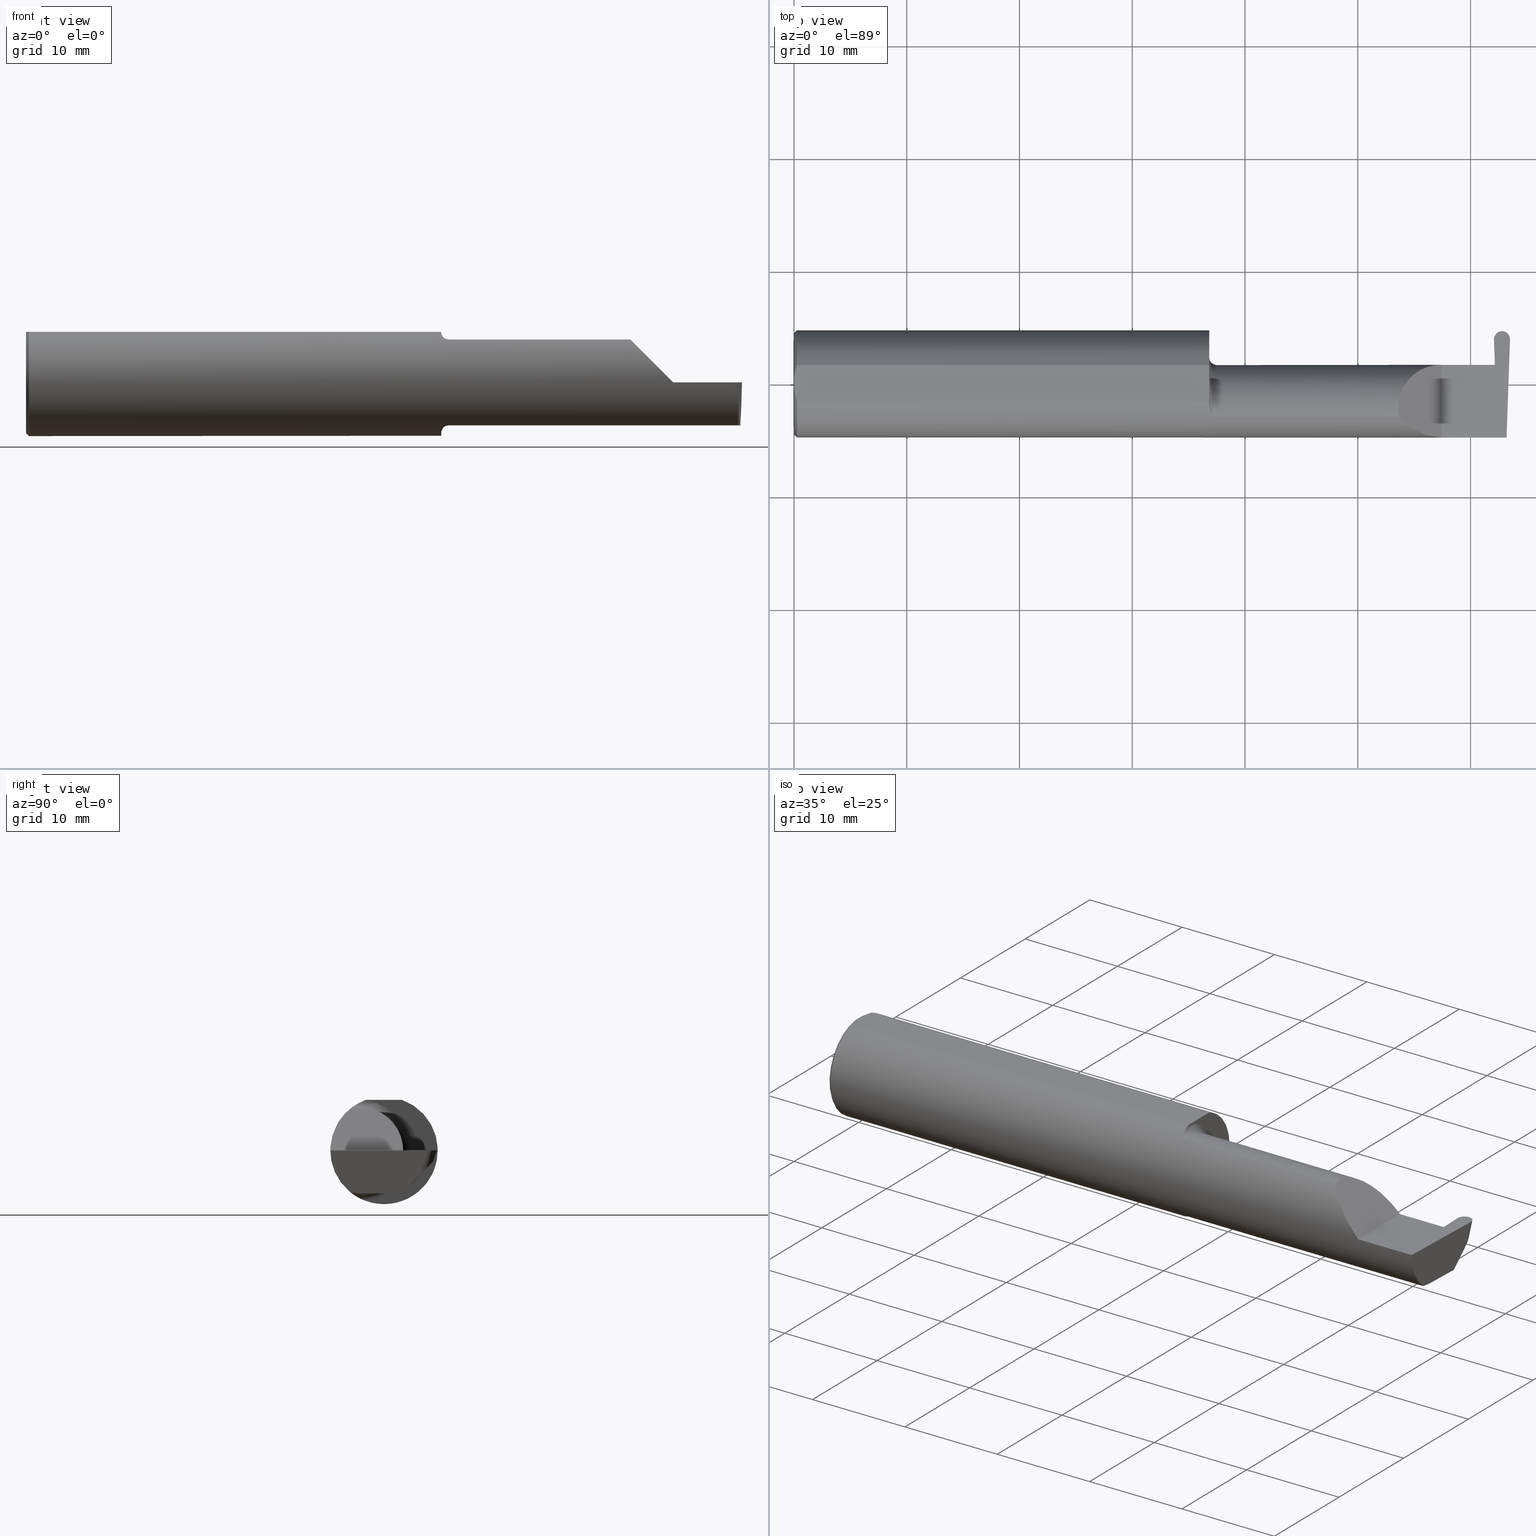
[diagram: canonical four-view strip — front | top / right | iso, engineering-drawing reading convention]
A machine part, canonical four-view strip (front | top / right | iso — engineering-drawing reading convention). The complete STEP part file that produces these views, byte-faithful:
ISO-10303-21;
HEADER;
FILE_DESCRIPTION (( 'STEP AP203' ),
    '1' );
FILE_NAME ('222128-GFR055-16.STEP',
    '2024-06-26T18:49:57',
    ( '' ),
    ( '' ),
    'SwSTEP 2.0',
    'SolidWorks 2024',
    '' );
FILE_SCHEMA (( 'CONFIG_CONTROL_DESIGN' ));
ENDSEC;

DATA;
#1 = CARTESIAN_POINT ( 'NONE',  ( 1.450000000000000178, -0.06851976604679066440, 0.1743704796142198643 ) ) ;
#2 = ORIENTED_EDGE ( 'NONE', *, *, #389, .T. ) ;
#3 = CALENDAR_DATE ( 2024, 26, 6 ) ;
#4 = DIRECTION ( 'NONE',  ( 0.000000000000000000, 0.000000000000000000, -1.000000000000000000 ) ) ;
#5 = PERSON_AND_ORGANIZATION_ROLE ( 'creator' ) ;
#6 = VERTEX_POINT ( 'NONE', #655 ) ;
#7 = AXIS2_PLACEMENT_3D ( 'NONE', #624, #193, #408 ) ;
#8 = CARTESIAN_POINT ( 'NONE',  ( 2.260000000000000231, -0.2500000000000000555, 2.939152317953647352E-17 ) ) ;
#9 = CARTESIAN_POINT ( 'NONE',  ( 1.450000000000000178, -0.06851976604679066440, -0.1743704796142198643 ) ) ;
#10 = CARTESIAN_POINT ( 'NONE',  ( 0.000000000000000000, -0.01880691362238934641, 0.1763499999999999235 ) ) ;
#11 = PERSON_AND_ORGANIZATION ( #506, #452 ) ;
#12 = CYLINDRICAL_SURFACE ( 'NONE', #168, 0.02800000000000000058 ) ;
#13 = EDGE_CURVE ( 'NONE', #455, #108, #382, .T. ) ;
#14 = EDGE_CURVE ( 'NONE', #566, #235, #277, .T. ) ;
#15 = LINE ( 'NONE', #562, #669 ) ;
#16 = CIRCLE ( 'NONE', #270, 0.1773499999999999521 ) ;
#17 = CARTESIAN_POINT ( 'NONE',  ( 1.465028532764138580, -0.1137241120808235861, -0.1488947809299403513 ) ) ;
#18 = LOCAL_TIME ( 11, 49, 57.00000000000000000, #339 ) ;
#19 = EDGE_CURVE ( 'NONE', #343, #255, #606, .T. ) ;
#20 = DIRECTION ( 'NONE',  ( 0.000000000000000000, 1.000000000000000000, 0.000000000000000000 ) ) ;
#21 = ORIENTED_EDGE ( 'NONE', *, *, #623, .F. ) ;
#22 = DIRECTION ( 'NONE',  ( 1.000000000000000000, -0.000000000000000000, -0.000000000000000000 ) ) ;
#23 = CARTESIAN_POINT ( 'NONE',  ( 0.000000000000000000, 0.000000000000000000, -0.1773499999999999521 ) ) ;
#24 =( BOUNDED_CURVE ( )  B_SPLINE_CURVE ( 3, ( #248, #689, #198, #531 ),
 .UNSPECIFIED., .F., .F. ) 
 B_SPLINE_CURVE_WITH_KNOTS ( ( 4, 4 ),
 ( 4.712388980384688786, 5.606916381293133966 ),
 .UNSPECIFIED. ) 
 CURVE ( )  GEOMETRIC_REPRESENTATION_ITEM ( )  RATIONAL_B_SPLINE_CURVE ( ( 1.000000000000000000, 0.9344226172588806500, 0.9344226172588806500, 1.000000000000000000 ) ) 
 REPRESENTATION_ITEM ( '' )  );
#25 = CARTESIAN_POINT ( 'NONE',  ( 1.474999999999999867, -0.1172600179964005812, 0.1461167706989303927 ) ) ;
#26 = ORIENTED_EDGE ( 'NONE', *, *, #635, .F. ) ;
#27 = CARTESIAN_POINT ( 'NONE',  ( 2.447024025498200750, 0.06664999999999991764, 0.000000000000000000 ) ) ;
#28 = VERTEX_POINT ( 'NONE', #490 ) ;
#29 = DIRECTION ( 'NONE',  ( -0.000000000000000000, 1.000000000000000000, -0.000000000000000000 ) ) ;
#30 = LOCAL_TIME ( 11, 49, 57.00000000000000000, #661 ) ;
#31 = CARTESIAN_POINT ( 'NONE',  ( 2.488968613720943246, 0.1846500000000000641, -2.084523217784549751E-18 ) ) ;
#32 = VERTEX_POINT ( 'NONE', #378 ) ;
#33 = DIRECTION ( 'NONE',  ( 0.000000000000000000, -0.3090169943749481729, -0.9510565162951533091 ) ) ;
#34 = CARTESIAN_POINT ( 'NONE',  ( 0.000000000000000000, 0.000000000000000000, 0.000000000000000000 ) ) ;
#35 = ORIENTED_EDGE ( 'NONE', *, *, #118, .T. ) ;
#36 = DIRECTION ( 'NONE',  ( 0.7071067811865511255, 0.000000000000000000, -0.7071067811865439090 ) ) ;
#37 = VERTEX_POINT ( 'NONE', #10 ) ;
#38 = CARTESIAN_POINT ( 'NONE',  ( 0.000000000000000000, 0.01880691362238934988, 0.1763499999999999235 ) ) ;
#39 = VECTOR ( 'NONE', #107, 39.37007874015748854 ) ;
#40 = DIRECTION ( 'NONE',  ( 0.000000000000000000, 1.000000000000000000, 0.000000000000000000 ) ) ;
#41 = EDGE_CURVE ( 'NONE', #511, #187, #72, .T. ) ;
#42 = ORIENTED_EDGE ( 'NONE', *, *, #19, .F. ) ;
#43 = DIRECTION ( 'NONE',  ( -1.000000000000000000, -5.153652266948881677E-17, -0.000000000000000000 ) ) ;
#44 = VERTEX_POINT ( 'NONE', #496 ) ;
#45 = ADVANCED_FACE ( 'NONE', ( #549 ), #383, .F. ) ;
#46 = PLANE ( 'NONE',  #55 ) ;
#47 = CARTESIAN_POINT ( 'NONE',  ( 2.449736488887833907, 0.06030305154315079852, -0.1500000000000000500 ) ) ;
#48 = ORIENTED_EDGE ( 'NONE', *, *, #523, .T. ) ;
#49 = DIRECTION ( 'NONE',  ( -1.000000000000000000, -5.153652266948881677E-17, -0.000000000000000000 ) ) ;
#50 = ADVANCED_FACE ( 'NONE', ( #224 ), #218, .T. ) ;
#51 = CARTESIAN_POINT ( 'NONE',  ( 0.000000000000000000, 0.000000000000000000, 0.000000000000000000 ) ) ;
#52 = VECTOR ( 'NONE', #465, 39.37007874015748854 ) ;
#53 = ORIENTED_EDGE ( 'NONE', *, *, #374, .T. ) ;
#54 = AXIS2_PLACEMENT_3D ( 'NONE', #603, #58, #4 ) ;
#55 = AXIS2_PLACEMENT_3D ( 'NONE', #434, #106, #109 ) ;
#56 = FACE_OUTER_BOUND ( 'NONE', #394, .T. ) ;
#57 = CARTESIAN_POINT ( 'NONE',  ( 2.500000000000000000, -0.2500000000000000555, 0.000000000000000000 ) ) ;
#58 = DIRECTION ( 'NONE',  ( 1.000000000000000000, 0.000000000000000000, 0.000000000000000000 ) ) ;
#59 = EDGE_LOOP ( 'NONE', ( #384, #92, #321, #480 ) ) ;
#60 = APPROVAL_PERSON_ORGANIZATION ( #563, #666, #165 ) ;
#61 = DATE_AND_TIME ( #68, #682 ) ;
#62 = DIRECTION ( 'NONE',  ( 0.01806679408117481400, 0.000000000000000000, -0.9998367821557817559 ) ) ;
#63 = DIRECTION ( 'NONE',  ( -0.03489949670249509889, -0.9993908270190959842, 0.000000000000000000 ) ) ;
#64 = DATE_TIME_ROLE ( 'classification_date' ) ;
#65 = CARTESIAN_POINT ( 'NONE',  ( 1.472174967710399462, -0.1172600179964005812, -0.1461167706989303927 ) ) ;
#66 = EDGE_CURVE ( 'NONE', #537, #297, #584, .T. ) ;
#67 = PLANE ( 'NONE',  #380 ) ;
#68 = CALENDAR_DATE ( 2024, 26, 6 ) ;
#69 = CARTESIAN_POINT ( 'NONE',  ( 1.458439486659307338, -0.1064616213911158682, -0.1542305641651500470 ) ) ;
#70 = ADVANCED_FACE ( 'NONE', ( #499 ), #665, .F. ) ;
#71 = VERTEX_POINT ( 'NONE', #27 ) ;
#72 = CIRCLE ( 'NONE', #54, 0.1873499999999999888 ) ;
#73 = CARTESIAN_POINT ( 'NONE',  ( 2.447263571767182899, 0.1948092623211197250, -0.01549378922202960043 ) ) ;
#74 = CIRCLE ( 'NONE', #388, 0.1873499999999999888 ) ;
#75 = VERTEX_POINT ( 'NONE', #409 ) ;
#76 = CARTESIAN_POINT ( 'NONE',  ( 2.472196486352602030, 0.1846500000000000363, 0.000000000000000000 ) ) ;
#77 = DIRECTION ( 'NONE',  ( 1.000000000000000000, -0.000000000000000000, -0.000000000000000000 ) ) ;
#78 = VERTEX_POINT ( 'NONE', #342 ) ;
#79 = EDGE_CURVE ( 'NONE', #343, #387, #85, .T. ) ;
#80 = CARTESIAN_POINT ( 'NONE',  ( 2.496474746315712867, 0.1068850723125632091, -0.1034179792305871259 ) ) ;
#81 = LINE ( 'NONE', #451, #52 ) ;
#82 = APPLICATION_CONTEXT ( 'configuration controlled 3d designs of mechanical parts and assemblies' ) ;
#83 = ORIENTED_EDGE ( 'NONE', *, *, #282, .T. ) ;
#84 = DIRECTION ( 'NONE',  ( -0.0003154085283454281579, 0.9999999502587288980, 0.000000000000000000 ) ) ;
#85 = CIRCLE ( 'NONE', #166, 0.1873499999999999888 ) ;
#86 =( BOUNDED_CURVE ( )  B_SPLINE_CURVE ( 3, ( #308, #594, #530, #323 ),
 .UNSPECIFIED., .F., .F. ) 
 B_SPLINE_CURVE_WITH_KNOTS ( ( 4, 4 ),
 ( 1.570796326794885678, 1.601113425804750801 ),
 .UNSPECIFIED. ) 
 CURVE ( )  GEOMETRIC_REPRESENTATION_ITEM ( )  RATIONAL_B_SPLINE_CURVE ( ( 1.000000000000000000, 0.9999234075922796006, 0.9999234075922796006, 1.000000000000000000 ) ) 
 REPRESENTATION_ITEM ( '' )  );
#87 = AXIS2_PLACEMENT_3D ( 'NONE', #425, #370, #597 ) ;
#88 = LINE ( 'NONE', #159, #39 ) ;
#89 = ORIENTED_EDGE ( 'NONE', *, *, #245, .T. ) ;
#90 = PLANE ( 'NONE',  #625 ) ;
#91 = CARTESIAN_POINT ( 'NONE',  ( 1.959450000000000136, -0.1172600179964006506, 0.1461167706989303650 ) ) ;
#92 = ORIENTED_EDGE ( 'NONE', *, *, #374, .F. ) ;
#93 = CARTESIAN_POINT ( 'NONE',  ( 2.443949607349645614, 0.1545085540790380740, 0.0003624150208497781676 ) ) ;
#94 = ADVANCED_FACE ( 'NONE', ( #674 ), #227, .F. ) ;
#95 = LINE ( 'NONE', #368, #533 ) ;
#96 =( BOUNDED_CURVE ( )  B_SPLINE_CURVE ( 3, ( #703, #152, #653, #478 ),
 .UNSPECIFIED., .F., .F. ) 
 B_SPLINE_CURVE_WITH_KNOTS ( ( 4, 4 ),
 ( 0.8789888184544275562, 1.107026853503871644 ),
 .UNSPECIFIED. ) 
 CURVE ( )  GEOMETRIC_REPRESENTATION_ITEM ( )  RATIONAL_B_SPLINE_CURVE ( ( 1.000000000000000000, 0.9956712472009929815, 0.9956712472009929815, 1.000000000000000000 ) ) 
 REPRESENTATION_ITEM ( '' )  );
#97 = ORIENTED_EDGE ( 'NONE', *, *, #548, .T. ) ;
#98 =( NAMED_UNIT ( * ) SI_UNIT ( $, .STERADIAN. ) SOLID_ANGLE_UNIT ( ) );
#99 = CYLINDRICAL_SURFACE ( 'NONE', #461, 0.1499999999999999944 ) ;
#100 = VECTOR ( 'NONE', #312, 39.37007874015748854 ) ;
#101 = ORIENTED_EDGE ( 'NONE', *, *, #175, .F. ) ;
#102 = CARTESIAN_POINT ( 'NONE',  ( 0.01000000000000013205, 0.000000000000000000, 0.000000000000000000 ) ) ;
#103 = CARTESIAN_POINT ( 'NONE',  ( 0.01000000000000013205, -0.06325108694718235836, 0.1763499999999999235 ) ) ;
#104 = ORIENTED_EDGE ( 'NONE', *, *, #265, .T. ) ;
#105 = EDGE_CURVE ( 'NONE', #37, #552, #15, .T. ) ;
#106 = DIRECTION ( 'NONE',  ( 0.000000000000000000, 0.000000000000000000, 1.000000000000000000 ) ) ;
#107 = DIRECTION ( 'NONE',  ( -0.01806954526206910883, 0.01744955702544858864, 0.9996844524616943506 ) ) ;
#108 = VERTEX_POINT ( 'NONE', #237 ) ;
#109 = DIRECTION ( 'NONE',  ( 1.000000000000000000, 0.000000000000000000, -0.000000000000000000 ) ) ;
#110 = ORIENTED_EDGE ( 'NONE', *, *, #13, .T. ) ;
#111 = PERSON_AND_ORGANIZATION_ROLE ( 'design_supplier' ) ;
#112 = EDGE_CURVE ( 'NONE', #75, #638, #333, .T. ) ;
#113 = DIRECTION ( 'NONE',  ( -5.153652266948881677E-17, 1.000000000000000000, 0.000000000000000000 ) ) ;
#114 = CALENDAR_DATE ( 2024, 26, 6 ) ;
#115 = DIRECTION ( 'NONE',  ( -1.224646799147353947E-16, 0.000000000000000000, -1.000000000000000000 ) ) ;
#116 = DATE_AND_TIME ( #331, #18 ) ;
#117 = CARTESIAN_POINT ( 'NONE',  ( 1.474999999999999867, -0.1172600179964005812, -0.1461167706989303650 ) ) ;
#118 = EDGE_CURVE ( 'NONE', #6, #28, #81, .T. ) ;
#119 = DATE_AND_TIME ( #3, #30 ) ;
#120 = LINE ( 'NONE', #560, #262 ) ;
#121 = ORIENTED_EDGE ( 'NONE', *, *, #600, .T. ) ;
#122 = LINE ( 'NONE', #287, #509 ) ;
#123 = CARTESIAN_POINT ( 'NONE',  ( 0.01000000000000013205, 0.000000000000000000, -0.1873499999999999888 ) ) ;
#124 = ORIENTED_EDGE ( 'NONE', *, *, #19, .T. ) ;
#125 = CARTESIAN_POINT ( 'NONE',  ( 1.450358271039144054, -0.07873626113568082951, -0.1700887912276896341 ) ) ;
#126 = DIRECTION ( 'NONE',  ( 0.000000000000000000, -0.9510565162951534202, 0.3090169943749479509 ) ) ;
#127 = CARTESIAN_POINT ( 'NONE',  ( 2.447024025498200750, 0.06664999999999991764, 0.000000000000000000 ) ) ;
#128 = ORIENTED_EDGE ( 'NONE', *, *, #112, .F. ) ;
#129 = VECTOR ( 'NONE', #489, 39.37007874015748143 ) ;
#130 = CARTESIAN_POINT ( 'NONE',  ( 1.451829077486400443, -0.08839624499054646312, 0.1652742498708037744 ) ) ;
#131 = CARTESIAN_POINT ( 'NONE',  ( 2.470340804352568753, 0.1370935646770005678, -0.05575375471034092062 ) ) ;
#132 = ORIENTED_EDGE ( 'NONE', *, *, #14, .F. ) ;
#133 = LINE ( 'NONE', #680, #273 ) ;
#134 =( BOUNDED_CURVE ( )  B_SPLINE_CURVE ( 3, ( #173, #386, #598, #602 ),
 .UNSPECIFIED., .F., .F. ) 
 B_SPLINE_CURVE_WITH_KNOTS ( ( 4, 4 ),
 ( 6.199081184676152212, 7.797674339294876411 ),
 .UNSPECIFIED. ) 
 CURVE ( )  GEOMETRIC_REPRESENTATION_ITEM ( )  RATIONAL_B_SPLINE_CURVE ( ( 1.000000000000000000, 0.7981407609938082626, 0.7981407609938082626, 1.000000000000000000 ) ) 
 REPRESENTATION_ITEM ( '' )  );
#135 = CARTESIAN_POINT ( 'NONE',  ( 2.446346361333295416, 0.1274799371216592259, -0.08282311442149084546 ) ) ;
#136 = ORIENTED_EDGE ( 'NONE', *, *, #630, .T. ) ;
#137 = LINE ( 'NONE', #357, #402 ) ;
#138 = CARTESIAN_POINT ( 'NONE',  ( 2.447024025498200750, 0.06664999999999991764, 0.000000000000000000 ) ) ;
#139 = VERTEX_POINT ( 'NONE', #571 ) ;
#140 = ADVANCED_FACE ( 'NONE', ( #671 ), #67, .F. ) ;
#141 = EDGE_CURVE ( 'NONE', #28, #566, #164, .T. ) ;
#142 = FACE_OUTER_BOUND ( 'NONE', #180, .T. ) ;
#143 = AXIS2_PLACEMENT_3D ( 'NONE', #556, #616, #673 ) ;
#144 = LOCAL_TIME ( 11, 49, 57.00000000000000000, #609 ) ;
#145 = LINE ( 'NONE', #636, #448 ) ;
#146 = ORIENTED_EDGE ( 'NONE', *, *, #433, .T. ) ;
#147 = EDGE_CURVE ( 'NONE', #235, #588, #240, .T. ) ;
#148 = B_SPLINE_CURVE_WITH_KNOTS ( 'NONE', 3,
 ( #103, #372, #301, #590 ),
 .UNSPECIFIED., .F., .F.,
 ( 4, 4 ),
 ( 0.009771445421851331775, 0.01092787937989104369 ),
 .UNSPECIFIED. ) ;
#149 = DIRECTION ( 'NONE',  ( 1.000000000000000000, 0.000000000000000000, 0.000000000000000000 ) ) ;
#150 = CARTESIAN_POINT ( 'NONE',  ( 2.447118648061411772, 0.06655862405286416816, -0.005234924505382331644 ) ) ;
#151 = ORIENTED_EDGE ( 'NONE', *, *, #41, .F. ) ;
#152 = CARTESIAN_POINT ( 'NONE',  ( 2.488245243745037527, -0.1061291577212408604, -0.1486999626928446339 ) ) ;
#153 = DIRECTION ( 'NONE',  ( 0.000000000000000000, 0.000000000000000000, -1.000000000000000000 ) ) ;
#154 = ORIENTED_EDGE ( 'NONE', *, *, #364, .F. ) ;
#155 = B_SPLINE_CURVE_WITH_KNOTS ( 'NONE', 3,
 ( #38, #253, #647, #700 ),
 .UNSPECIFIED., .F., .F.,
 ( 4, 4 ),
 ( 0.01188664626022242071, 0.01304646959483746725 ),
 .UNSPECIFIED. ) ;
#156 =( CONVERSION_BASED_UNIT ( 'INCH', #161 ) LENGTH_UNIT ( ) NAMED_UNIT ( #413 ) );
#157 = CARTESIAN_POINT ( 'NONE',  ( 2.488006099050898090, -0.1873499999999999888, 0.000000000000000000 ) ) ;
#158 = ORIENTED_EDGE ( 'NONE', *, *, #147, .F. ) ;
#159 = CARTESIAN_POINT ( 'NONE',  ( 2.447024025498200750, 0.06664999999999991764, -9.645561665750333182E-21 ) ) ;
#160 = ORIENTED_EDGE ( 'NONE', *, *, #195, .T. ) ;
#161 = LENGTH_MEASURE_WITH_UNIT ( LENGTH_MEASURE( 0.02539999999999999897 ), #481 );
#162 = CARTESIAN_POINT ( 'NONE',  ( 0.000000000000000000, 0.000000000000000000, 0.000000000000000000 ) ) ;
#163 = CARTESIAN_POINT ( 'NONE',  ( 2.470340804352568309, 0.1637231471332648569, -0.06440623055283946352 ) ) ;
#164 =( BOUNDED_CURVE ( )  B_SPLINE_CURVE ( 3, ( #507, #354, #31, #392 ),
 .UNSPECIFIED., .F., .T. ) 
 B_SPLINE_CURVE_WITH_KNOTS ( ( 4, 4 ),
 ( 1.627103621474501827, 3.225696776093226248 ),
 .UNSPECIFIED. ) 
 CURVE ( )  GEOMETRIC_REPRESENTATION_ITEM ( )  RATIONAL_B_SPLINE_CURVE ( ( 1.000000000000000000, 0.7981407609938081515, 0.7981407609938081515, 1.000000000000000000 ) ) 
 REPRESENTATION_ITEM ( '' )  );
#165 = APPROVAL_ROLE ( '' ) ;
#166 = AXIS2_PLACEMENT_3D ( 'NONE', #576, #686, #20 ) ;
#167 = ORIENTED_EDGE ( 'NONE', *, *, #169, .T. ) ;
#168 = AXIS2_PLACEMENT_3D ( 'NONE', #231, #463, #126 ) ;
#169 = EDGE_CURVE ( 'NONE', #387, #352, #681, .T. ) ;
#170 = PERSON_AND_ORGANIZATION ( #506, #452 ) ;
#171 = CARTESIAN_POINT ( 'NONE',  ( 2.449754845031671291, 0.002105059811798285982, -0.1500000000000000222 ) ) ;
#172 = ORIENTED_EDGE ( 'NONE', *, *, #551, .F. ) ;
#173 = CARTESIAN_POINT ( 'NONE',  ( 2.471703513647399486, 0.1846500000000000363, 0.000000000000000000 ) ) ;
#174 = DIRECTION ( 'NONE',  ( -0.02739170151060046909, -0.3089010440752013587, -0.9506996579664918068 ) ) ;
#175 = EDGE_CURVE ( 'NONE', #608, #204, #677, .T. ) ;
#176 = AXIS2_PLACEMENT_3D ( 'NONE', #162, #668, #223 ) ;
#177 = CALENDAR_DATE ( 2024, 26, 6 ) ;
#178 = FACE_OUTER_BOUND ( 'NONE', #59, .T. ) ;
#179 = DIRECTION ( 'NONE',  ( 0.000000000000000000, -0.7071067811865515695, 0.7071067811865434649 ) ) ;
#180 = EDGE_LOOP ( 'NONE', ( #403, #525, #574 ) ) ;
#181 = CARTESIAN_POINT ( 'NONE',  ( 1.456304331342287872, -0.1022198306720690925, -0.1570962426853818594 ) ) ;
#182 = CC_DESIGN_PERSON_AND_ORGANIZATION_ASSIGNMENT ( #170, #443, ( #493 ) ) ;
#183 = CARTESIAN_POINT ( 'NONE',  ( 2.155331797197862720, 0.06664999999999998703, 0.1046682028021363453 ) ) ;
#184 = ORIENTED_EDGE ( 'NONE', *, *, #475, .T. ) ;
#185 = FACE_OUTER_BOUND ( 'NONE', #651, .T. ) ;
#186 = DIRECTION ( 'NONE',  ( -1.000000000000000000, -5.153652266948881677E-17, -0.000000000000000000 ) ) ;
#187 = VERTEX_POINT ( 'NONE', #123 ) ;
#188 = VECTOR ( 'NONE', #514, 39.37007874015748143 ) ;
#189 = CIRCLE ( 'NONE', #176, 0.1773499999999999521 ) ;
#190 = CARTESIAN_POINT ( 'NONE',  ( 2.471703513647399486, 0.1846500000000000363, 0.000000000000000000 ) ) ;
#191 = LINE ( 'NONE', #346, #188 ) ;
#192 = ORIENTED_EDGE ( 'NONE', *, *, #389, .F. ) ;
#193 = DIRECTION ( 'NONE',  ( 0.000000000000000000, 0.000000000000000000, 1.000000000000000000 ) ) ;
#194 = CARTESIAN_POINT ( 'NONE',  ( 2.443917087302114766, 0.1556210691174950977, 0.000000000000000000 ) ) ;
#195 = EDGE_CURVE ( 'NONE', #638, #6, #649, .T. ) ;
#196 = EDGE_LOOP ( 'NONE', ( #427, #679, #515, #53, #326 ) ) ;
#197 = CARTESIAN_POINT ( 'NONE',  ( 1.472161949849308371, -0.1172600179964060768, 0.1461167706989261184 ) ) ;
#198 = CARTESIAN_POINT ( 'NONE',  ( 2.150065971957465294, -0.1623470442677543146, 0.1099340280425333688 ) ) ;
#199 = EDGE_CURVE ( 'NONE', #32, #71, #510, .T. ) ;
#200 = ORIENTED_EDGE ( 'NONE', *, *, #319, .T. ) ;
#201 = CARTESIAN_POINT ( 'NONE',  ( 0.000000000000000000, 0.000000000000000000, -0.1773499999999999521 ) ) ;
#202 = VECTOR ( 'NONE', #247, 39.37007874015748143 ) ;
#203 = PLANE ( 'NONE',  #546 ) ;
#204 = VERTEX_POINT ( 'NONE', #290 ) ;
#205 = DIRECTION ( 'NONE',  ( 0.000000000000000000, 0.000000000000000000, -1.000000000000000000 ) ) ;
#206 = CC_DESIGN_DATE_AND_TIME_ASSIGNMENT ( #61, #559, ( #691 ) ) ;
#207 = CARTESIAN_POINT ( 'NONE',  ( 1.450000000000000178, -0.06851976604679066440, -0.1743704796142198643 ) ) ;
#208 = ORIENTED_EDGE ( 'NONE', *, *, #282, .F. ) ;
#209 = EDGE_CURVE ( 'NONE', #255, #453, #191, .T. ) ;
#210 = DIRECTION ( 'NONE',  ( 0.000000000000000000, -0.01745240643728358451, -0.9998476951563912696 ) ) ;
#211 = ORIENTED_EDGE ( 'NONE', *, *, #79, .F. ) ;
#212 = VECTOR ( 'NONE', #524, 39.37007874015748143 ) ;
#213 = CARTESIAN_POINT ( 'NONE',  ( 1.450000000000000178, 0.000000000000000000, 0.000000000000000000 ) ) ;
#214 = VERTEX_POINT ( 'NONE', #25 ) ;
#215 = DIRECTION ( 'NONE',  ( -0.03489949670249509889, -0.9993908270190959842, 0.000000000000000000 ) ) ;
#216 = ORIENTED_EDGE ( 'NONE', *, *, #433, .F. ) ;
#217 = ADVANCED_FACE ( 'NONE', ( #678 ), #401, .T. ) ;
#218 = PLANE ( 'NONE',  #449 ) ;
#219 = EDGE_CURVE ( 'NONE', #71, #78, #95, .T. ) ;
#220 = ORIENTED_EDGE ( 'NONE', *, *, #527, .F. ) ;
#221 = VECTOR ( 'NONE', #22, 39.37007874015748143 ) ;
#222 = EDGE_LOOP ( 'NONE', ( #641, #307, #367, #622, #672, #373, #192, #249, #596, #706 ) ) ;
#223 = DIRECTION ( 'NONE',  ( 0.000000000000000000, 0.000000000000000000, -1.000000000000000000 ) ) ;
#224 = FACE_OUTER_BOUND ( 'NONE', #702, .T. ) ;
#225 = PERSON_AND_ORGANIZATION_ROLE ( 'classification_officer' ) ;
#226 = CARTESIAN_POINT ( 'NONE',  ( 1.469511795768554840, -0.1163687266324234804, -0.1468371510166788796 ) ) ;
#227 = PLANE ( 'NONE',  #707 ) ;
#228 = VECTOR ( 'NONE', #580, 39.37007874015748854 ) ;
#229 = CONICAL_SURFACE ( 'NONE', #498, 0.1773499999999999521, 0.7853981633974431720 ) ;
#230 = ORIENTED_EDGE ( 'NONE', *, *, #340, .T. ) ;
#231 = CARTESIAN_POINT ( 'NONE',  ( 2.469848201527405251, 0.1789430992080996430, 0.07304586875446965333 ) ) ;
#232 = UNCERTAINTY_MEASURE_WITH_UNIT (LENGTH_MEASURE( 1.000000000000000082E-05 ), #156, 'distance_accuracy_value', 'NONE');
#233 = CARTESIAN_POINT ( 'NONE',  ( 2.471950000000000536, 0.1722830110551551719, -0.03802004048799437902 ) ) ;
#234 = EDGE_CURVE ( 'NONE', #511, #37, #148, .T. ) ;
#235 = VERTEX_POINT ( 'NONE', #414 ) ;
#236 = LINE ( 'NONE', #80, #670 ) ;
#237 = CARTESIAN_POINT ( 'NONE',  ( 2.489018003393509648, -0.08335000000000003517, -0.1500000000000000500 ) ) ;
#238 = ORIENTED_EDGE ( 'NONE', *, *, #245, .F. ) ;
#239 = DIRECTION ( 'NONE',  ( 0.000000000000000000, 0.000000000000000000, -1.000000000000000000 ) ) ;
#240 = LINE ( 'NONE', #279, #416 ) ;
#241 = ORIENTED_EDGE ( 'NONE', *, *, #548, .F. ) ;
#242 = VECTOR ( 'NONE', #474, 39.37007874015748143 ) ;
#243 = SECURITY_CLASSIFICATION ( '', '', #605 ) ;
#244 = FACE_OUTER_BOUND ( 'NONE', #684, .T. ) ;
#245 = EDGE_CURVE ( 'NONE', #252, #455, #642, .T. ) ;
#246 = ORIENTED_EDGE ( 'NONE', *, *, #234, .F. ) ;
#247 = DIRECTION ( 'NONE',  ( 1.000000000000000000, 5.153652266948881677E-17, 0.000000000000000000 ) ) ;
#248 = CARTESIAN_POINT ( 'NONE',  ( 2.260000000000000231, -0.1873499999999999888, 2.939152317953647352E-17 ) ) ;
#249 = ORIENTED_EDGE ( 'NONE', *, *, #66, .F. ) ;
#250 = CARTESIAN_POINT ( 'NONE',  ( 1.465004157323697376, -0.1137044537483316020, 0.1489098419202428691 ) ) ;
#251 = DIRECTION ( 'NONE',  ( -0.03701744261649874551, 0.7066221440565398915, 0.7066221440565479961 ) ) ;
#252 = VERTEX_POINT ( 'NONE', #47 ) ;
#253 = CARTESIAN_POINT ( 'NONE',  ( 0.001616639753276021213, 0.03405189565400638246, 0.1763499999999999235 ) ) ;
#254 = DIRECTION ( 'NONE',  ( 0.000000000000000000, -0.9998476951563912696, 0.01745240643728358451 ) ) ;
#255 = VERTEX_POINT ( 'NONE', #362 ) ;
#256 = CARTESIAN_POINT ( 'NONE',  ( 2.487901662807321390, -0.1172600179964006090, -0.1461167706989303650 ) ) ;
#257 = ORIENTED_EDGE ( 'NONE', *, *, #578, .T. ) ;
#258 = CARTESIAN_POINT ( 'NONE',  ( 2.437903374698175529, 0.06664999999999991764, 0.000000000000000000 ) ) ;
#259 = ORIENTED_EDGE ( 'NONE', *, *, #450, .T. ) ;
#260 = AXIS2_PLACEMENT_3D ( 'NONE', #213, #305, #40 ) ;
#261 = DIRECTION ( 'NONE',  ( 0.000000000000000000, 0.000000000000000000, -1.000000000000000000 ) ) ;
#262 = VECTOR ( 'NONE', #280, 39.37007874015748143 ) ;
#263 = ORIENTED_EDGE ( 'NONE', *, *, #551, .T. ) ;
#264 = DIRECTION ( 'NONE',  ( 1.000000000000000000, 0.000000000000000000, 0.000000000000000000 ) ) ;
#265 = EDGE_CURVE ( 'NONE', #643, #37, #16, .T. ) ;
#266 = CARTESIAN_POINT ( 'NONE',  ( 1.450000000000000178, 0.1873499999999998500, 0.000000000000000000 ) ) ;
#267 = APPROVAL_DATE_TIME ( #497, #437 ) ;
#268 = ORIENTED_EDGE ( 'NONE', *, *, #330, .F. ) ;
#269 = PERSON_AND_ORGANIZATION ( #506, #452 ) ;
#270 = AXIS2_PLACEMENT_3D ( 'NONE', #34, #420, #153 ) ;
#271 = PRODUCT_DEFINITION_SHAPE ( 'NONE', 'NONE',  #691 ) ;
#272 = CARTESIAN_POINT ( 'NONE',  ( 2.489315391880043915, -0.07483390797619574042, -0.1500000000000000500 ) ) ;
#273 = VECTOR ( 'NONE', #29, 39.37007874015748143 ) ;
#274 = PERSON_AND_ORGANIZATION ( #506, #452 ) ;
#275 = CARTESIAN_POINT ( 'NONE',  ( 1.450000000000000178, 0.06655862405286427919, -0.005234924505376313889 ) ) ;
#276 = ADVANCED_FACE ( 'NONE', ( #705 ), #99, .T. ) ;
#277 = LINE ( 'NONE', #163, #693 ) ;
#278 = DIRECTION ( 'NONE',  ( -0.01299916717458325655, 0.7070470357949164564, 0.7070470357949245610 ) ) ;
#279 = CARTESIAN_POINT ( 'NONE',  ( 2.469848201527405251, 0.2055726816643639321, 0.06439339291197111736 ) ) ;
#280 = DIRECTION ( 'NONE',  ( -1.000000000000000000, -5.153652266948881677E-17, -0.000000000000000000 ) ) ;
#281 = B_SPLINE_CURVE_WITH_KNOTS ( 'NONE', 3,
 ( #117, #65, #226, #17, #564, #69, #181, #447, #612, #125, #664, #9 ),
 .UNSPECIFIED., .F., .F.,
 ( 4, 2, 2, 2, 2, 4 ),
 ( 1.967976973658592312E-07, 0.0002120314145722273266, 0.0004238660314470887587, 0.0008475352651967989377, 0.001271204498946509279, 0.001694873732696219621 ),
 .UNSPECIFIED. ) ;
#282 = EDGE_CURVE ( 'NONE', #310, #315, #302, .T. ) ;
#283 = CARTESIAN_POINT ( 'NONE',  ( 2.260000000000000231, 0.06665000000000000091, 1.285879139104721225E-16 ) ) ;
#284 = AXIS2_PLACEMENT_3D ( 'NONE', #317, #43, #309 ) ;
#285 = TOROIDAL_SURFACE ( 'NONE', #557, 0.1749999999999999889, 0.02499999999999993547 ) ;
#286 = ORIENTED_EDGE ( 'NONE', *, *, #199, .T. ) ;
#287 = CARTESIAN_POINT ( 'NONE',  ( 2.733184360054361939, -0.08335000000000003517, -0.1500000000000000500 ) ) ;
#288 = LINE ( 'NONE', #513, #313 ) ;
#289 = EDGE_CURVE ( 'NONE', #214, #410, #613, .T. ) ;
#290 = CARTESIAN_POINT ( 'NONE',  ( 2.260000000000000231, 0.06665000000000000091, 1.285879139104721225E-16 ) ) ;
#291 = ORIENTED_EDGE ( 'NONE', *, *, #364, .T. ) ;
#292 = CARTESIAN_POINT ( 'NONE',  ( 0.000000000000000000, 0.000000000000000000, 0.000000000000000000 ) ) ;
#293 = DIRECTION ( 'NONE',  ( -0.000000000000000000, 1.000000000000000000, -0.000000000000000000 ) ) ;
#294 = EDGE_LOOP ( 'NONE', ( #545, #2, #487, #286 ) ) ;
#295 = DIRECTION ( 'NONE',  ( 1.000000000000000000, 0.000000000000000000, 0.000000000000000000 ) ) ;
#296 = DIRECTION ( 'NONE',  ( 0.9992386149554828290, 0.03489418134010773692, 0.01745240643728358798 ) ) ;
#297 = VERTEX_POINT ( 'NONE', #150 ) ;
#298 = CIRCLE ( 'NONE', #260, 0.1873499999999999888 ) ;
#299 =( GEOMETRIC_REPRESENTATION_CONTEXT ( 3 ) GLOBAL_UNCERTAINTY_ASSIGNED_CONTEXT ( ( #232 ) ) GLOBAL_UNIT_ASSIGNED_CONTEXT ( ( #156, #589, #98 ) ) REPRESENTATION_CONTEXT ( 'NONE', 'WORKASPACE' ) );
#300 = CARTESIAN_POINT ( 'NONE',  ( 1.450353553376444893, -0.07868116735658675642, 0.1701139256562800572 ) ) ;
#301 = CARTESIAN_POINT ( 'NONE',  ( 0.001595548104417008695, -0.03385300050298640367, 0.1763499999999999235 ) ) ;
#302 =( BOUNDED_CURVE ( )  B_SPLINE_CURVE ( 3, ( #314, #536, #698, #157 ),
 .UNSPECIFIED., .F., .T. ) 
 B_SPLINE_CURVE_WITH_KNOTS ( ( 4, 4 ),
 ( 5.852427379562164411, 6.746954780470612256 ),
 .UNSPECIFIED. ) 
 CURVE ( )  GEOMETRIC_REPRESENTATION_ITEM ( )  RATIONAL_B_SPLINE_CURVE ( ( 1.000000000000000000, 0.9344226172588802060, 0.9344226172588802060, 1.000000000000000000 ) ) 
 REPRESENTATION_ITEM ( '' )  );
#303 = ORIENTED_EDGE ( 'NONE', *, *, #41, .T. ) ;
#304 = LINE ( 'NONE', #575, #547 ) ;
#305 = DIRECTION ( 'NONE',  ( 1.000000000000000000, 5.153652266948881677E-17, 0.000000000000000000 ) ) ;
#306 = CC_DESIGN_PERSON_AND_ORGANIZATION_ASSIGNMENT ( #269, #111, ( #371 ) ) ;
#307 = ORIENTED_EDGE ( 'NONE', *, *, #289, .F. ) ;
#308 = CARTESIAN_POINT ( 'NONE',  ( 2.471950000000000536, 0.1818703299733204493, -0.008554944679891244089 ) ) ;
#309 = DIRECTION ( 'NONE',  ( 0.000000000000000000, -1.000000000000000000, 0.000000000000000000 ) ) ;
#310 = VERTEX_POINT ( 'NONE', #256 ) ;
#311 = VECTOR ( 'NONE', #63, 39.37007874015748143 ) ;
#312 = DIRECTION ( 'NONE',  ( 0.02739170151060044828, -0.3089010440752013031, -0.9506996579664918068 ) ) ;
#313 = VECTOR ( 'NONE', #400, 39.37007874015748143 ) ;
#314 = CARTESIAN_POINT ( 'NONE',  ( 2.487901662807321390, -0.1172600179964006090, -0.1461167706989303650 ) ) ;
#315 = VERTEX_POINT ( 'NONE', #423 ) ;
#316 = APPLICATION_PROTOCOL_DEFINITION ( 'international standard', 'config_control_design', 1994, #561 ) ;
#317 = CARTESIAN_POINT ( 'NONE',  ( 1.474999999999999867, -0.08335000000000004905, 0.000000000000000000 ) ) ;
#318 = EDGE_LOOP ( 'NONE', ( #577, #263, #151, #634 ) ) ;
#319 = EDGE_CURVE ( 'NONE', #44, #608, #24, .T. ) ;
#320 = PLANE ( 'NONE',  #348 ) ;
#321 = ORIENTED_EDGE ( 'NONE', *, *, #475, .F. ) ;
#322 = EDGE_CURVE ( 'NONE', #297, #71, #145, .T. ) ;
#323 = CARTESIAN_POINT ( 'NONE',  ( 2.471950000000000536, 0.1722830110551551719, -0.03802004048799437902 ) ) ;
#324 = AXIS2_PLACEMENT_3D ( 'NONE', #57, #115, #610 ) ;
#325 = AXIS2_PLACEMENT_3D ( 'NONE', #51, #335, #261 ) ;
#326 = ORIENTED_EDGE ( 'NONE', *, *, #322, .T. ) ;
#327 = DATE_AND_TIME ( #177, #695 ) ;
#328 = CARTESIAN_POINT ( 'NONE',  ( 1.450000000000000178, 0.1873499999999997667, 0.1763499999999999235 ) ) ;
#329 = CARTESIAN_POINT ( 'NONE',  ( 2.448662799063223705, 0.06357628547474619696, -0.09063792740366159728 ) ) ;
#330 = EDGE_CURVE ( 'NONE', #214, #608, #585, .T. ) ;
#331 = CALENDAR_DATE ( 2024, 26, 6 ) ;
#332 = CYLINDRICAL_SURFACE ( 'NONE', #143, 0.1873499999999999888 ) ;
#333 =( BOUNDED_CURVE ( )  B_SPLINE_CURVE ( 3, ( #135, #457, #633, #517 ),
 .UNSPECIFIED., .F., .T. ) 
 B_SPLINE_CURVE_WITH_KNOTS ( ( 4, 4 ),
 ( 4.698548015471834205, 6.266824071080692171 ),
 .UNSPECIFIED. ) 
 CURVE ( )  GEOMETRIC_REPRESENTATION_ITEM ( )  RATIONAL_B_SPLINE_CURVE ( ( 1.000000000000000000, 0.8053315133011073046, 0.8053315133011073046, 1.000000000000000000 ) ) 
 REPRESENTATION_ITEM ( '' )  );
#334 = EDGE_LOOP ( 'NONE', ( #699, #83, #369, #200, #268, #241, #211, #415, #303, #687, #472, #518, #216 ) ) ;
#335 = DIRECTION ( 'NONE',  ( 1.000000000000000000, 0.000000000000000000, 0.000000000000000000 ) ) ;
#336 = APPROVAL ( #607, 'UNSPECIFIED' ) ;
#337 = B_SPLINE_CURVE_WITH_KNOTS ( 'NONE', 3,
 ( #526, #516, #300, #130, #397, #412, #620, #688, #250, #568, #197, #350 ),
 .UNSPECIFIED., .F., .F.,
 ( 4, 2, 2, 2, 2, 4 ),
 ( 4.423516731080825304E-05, 0.0004615475116586706503, 0.0008788598560065329730, 0.001296172200354395350, 0.001504828372528325834, 0.001713484544702256317 ),
 .UNSPECIFIED. ) ;
#338 = CARTESIAN_POINT ( 'NONE',  ( -0.001039370078739994957, 0.1723030515431495657, -0.03799999999999999906 ) ) ;
#339 = COORDINATED_UNIVERSAL_TIME_OFFSET ( 8, 0, .BEHIND. ) ;
#340 = EDGE_CURVE ( 'NONE', #352, #255, #298, .T. ) ;
#341 = EDGE_CURVE ( 'NONE', #631, #75, #528, .T. ) ;
#342 = CARTESIAN_POINT ( 'NONE',  ( 2.443960049305725857, 0.1543907983005533280, 0.000000000000000000 ) ) ;
#343 = VERTEX_POINT ( 'NONE', #694 ) ;
#344 = CARTESIAN_POINT ( 'NONE',  ( 2.494034478493234452, 0.06030305154315081240, -0.1500000000000000500 ) ) ;
#345 = ADVANCED_FACE ( 'NONE', ( #701 ), #203, .F. ) ;
#346 = CARTESIAN_POINT ( 'NONE',  ( 0.000000000000000000, 0.06325108694718235836, 0.1763499999999999235 ) ) ;
#347 = AXIS2_PLACEMENT_3D ( 'NONE', #131, #405, #629 ) ;
#348 = AXIS2_PLACEMENT_3D ( 'NONE', #508, #543, #62 ) ;
#349 = ORIENTED_EDGE ( 'NONE', *, *, #630, .F. ) ;
#350 = CARTESIAN_POINT ( 'NONE',  ( 1.474999999999999867, -0.1172600179964005812, 0.1461167706989303927 ) ) ;
#351 = CARTESIAN_POINT ( 'NONE',  ( 2.090221225029926355, -0.01530148607434194015, 0.1697787749700729321 ) ) ;
#352 = VERTEX_POINT ( 'NONE', #207 ) ;
#353 = LINE ( 'NONE', #628, #202 ) ;
#354 = CARTESIAN_POINT ( 'NONE',  ( 2.500555318597047716, 0.1720126294265148514, -3.503485321703165850E-18 ) ) ;
#355 = EDGE_LOOP ( 'NONE', ( #690, #407, #26, #132, #376 ) ) ;
#356 = EDGE_CURVE ( 'NONE', #139, #32, #650, .T. ) ;
#357 = CARTESIAN_POINT ( 'NONE',  ( 3.749399456654646757E-32, -0.1873499999999999610, 3.061616997868383634E-16 ) ) ;
#358 = CARTESIAN_POINT ( 'NONE',  ( 2.437811998751039599, 0.06655862405286418204, -0.005234924505381044479 ) ) ;
#359 = ORIENTED_EDGE ( 'NONE', *, *, #459, .T. ) ;
#360 = VECTOR ( 'NONE', #251, 39.37007874015748143 ) ;
#361 = VECTOR ( 'NONE', #36, 39.37007874015748143 ) ;
#362 = CARTESIAN_POINT ( 'NONE',  ( 1.450000000000000178, 0.06325108694718235836, 0.1763499999999999235 ) ) ;
#363 = ORIENTED_EDGE ( 'NONE', *, *, #417, .T. ) ;
#364 = EDGE_CURVE ( 'NONE', #28, #315, #426, .T. ) ;
#365 = CARTESIAN_POINT ( 'NONE',  ( 1.474999999999999867, -0.08335000000000006293, 0.000000000000000000 ) ) ;
#366 = CARTESIAN_POINT ( 'NONE',  ( 1.450000000000000178, -0.08335000000000004905, 0.000000000000000000 ) ) ;
#367 = ORIENTED_EDGE ( 'NONE', *, *, #330, .T. ) ;
#368 = CARTESIAN_POINT ( 'NONE',  ( 2.443917087302114766, 0.1556210691174950977, 0.000000000000000000 ) ) ;
#369 = ORIENTED_EDGE ( 'NONE', *, *, #604, .T. ) ;
#370 = DIRECTION ( 'NONE',  ( 0.000000000000000000, 0.000000000000000000, 1.000000000000000000 ) ) ;
#371 = PRODUCT_DEFINITION_FORMATION_WITH_SPECIFIED_SOURCE ( 'ANY', '', #493, .NOT_KNOWN. ) ;
#372 = CARTESIAN_POINT ( 'NONE',  ( 0.005151108632379722968, -0.04888864921576022843, 0.1763499999999999235 ) ) ;
#373 = ORIENTED_EDGE ( 'NONE', *, *, #356, .F. ) ;
#374 = EDGE_CURVE ( 'NONE', #631, #297, #88, .T. ) ;
#375 = LINE ( 'NONE', #654, #221 ) ;
#376 = ORIENTED_EDGE ( 'NONE', *, *, #141, .F. ) ;
#377 = CARTESIAN_POINT ( 'NONE',  ( 0.01000000000000013205, 0.06325108694718235836, 0.1763499999999999235 ) ) ;
#378 = CARTESIAN_POINT ( 'NONE',  ( 2.437903374698175529, 0.06664999999999991764, 0.000000000000000000 ) ) ;
#379 = APPLICATION_PROTOCOL_DEFINITION ( 'international standard', 'config_control_design', 1994, #82 ) ;
#380 = AXIS2_PLACEMENT_3D ( 'NONE', #194, #296, #626 ) ;
#381 = CC_DESIGN_APPROVAL ( #666, ( #371 ) ) ;
#382 = LINE ( 'NONE', #272, #311 ) ;
#383 = PLANE ( 'NONE',  #324 ) ;
#384 = ORIENTED_EDGE ( 'NONE', *, *, #66, .T. ) ;
#385 = PERSON_AND_ORGANIZATION_ROLE ( 'creator' ) ;
#386 = CARTESIAN_POINT ( 'NONE',  ( 2.454931386279057826, 0.1846500000000000918, 2.084523217784548210E-18 ) ) ;
#387 = VERTEX_POINT ( 'NONE', #1 ) ;
#388 = AXIS2_PLACEMENT_3D ( 'NONE', #102, #264, #492 ) ;
#389 = EDGE_CURVE ( 'NONE', #297, #139, #435, .T. ) ;
#390 = PERSON_AND_ORGANIZATION ( #506, #452 ) ;
#391 = FACE_OUTER_BOUND ( 'NONE', #334, .T. ) ;
#392 = CARTESIAN_POINT ( 'NONE',  ( 2.472196486352602030, 0.1846500000000000363, 0.000000000000000000 ) ) ;
#393 = ADVANCED_FACE ( 'NONE', ( #178 ), #320, .F. ) ;
#394 = EDGE_LOOP ( 'NONE', ( #257, #124, #582, #349, #466, #246 ) ) ;
#395 = CARTESIAN_POINT ( 'NONE',  ( 1.474999999999999867, -0.1172600179964005812, -0.1461167706989303650 ) ) ;
#396 = DESIGN_CONTEXT ( 'detailed design', #82, 'design' ) ;
#397 = CARTESIAN_POINT ( 'NONE',  ( 1.452945243422983035, -0.09312071749437417223, 0.1626553472577906556 ) ) ;
#398 = CARTESIAN_POINT ( 'NONE',  ( 2.488291197303068802, 0.1715101730526979174, -0.03879287849045170988 ) ) ;
#399 = ORIENTED_EDGE ( 'NONE', *, *, #141, .T. ) ;
#400 = DIRECTION ( 'NONE',  ( 1.000000000000000000, 0.000000000000000000, 0.000000000000000000 ) ) ;
#401 = CYLINDRICAL_SURFACE ( 'NONE', #347, 0.02799999999999998671 ) ;
#402 = VECTOR ( 'NONE', #579, 39.37007874015748143 ) ;
#403 = ORIENTED_EDGE ( 'NONE', *, *, #14, .T. ) ;
#404 = DIRECTION ( 'NONE',  ( -0.03701744261649878714, -0.7066221440565398915, -0.7066221440565479961 ) ) ;
#405 = DIRECTION ( 'NONE',  ( -0.02739170151060047256, -0.3089010440752013587, -0.9506996579664920288 ) ) ;
#406 = ADVANCED_FACE ( 'NONE', ( #444 ), #488, .T. ) ;
#407 = ORIENTED_EDGE ( 'NONE', *, *, #195, .F. ) ;
#408 = DIRECTION ( 'NONE',  ( 1.000000000000000000, 0.000000000000000000, -0.000000000000000000 ) ) ;
#409 = CARTESIAN_POINT ( 'NONE',  ( 2.446346361333295416, 0.1274799371216592259, -0.08282311442149084546 ) ) ;
#410 = VERTEX_POINT ( 'NONE', #395 ) ;
#411 = CC_DESIGN_PERSON_AND_ORGANIZATION_ASSIGNMENT ( #390, #225, ( #243 ) ) ;
#412 = CARTESIAN_POINT ( 'NONE',  ( 1.456287624083520083, -0.1021858045380144436, 0.1571187174372875028 ) ) ;
#413 = DIMENSIONAL_EXPONENTS ( 1.000000000000000000, 0.000000000000000000, 0.000000000000000000, 0.000000000000000000, 0.000000000000000000, 0.000000000000000000, 0.000000000000000000 ) ;
#414 = CARTESIAN_POINT ( 'NONE',  ( 2.471950000000000536, 0.1818703299733204493, -0.008554944679891244089 ) ) ;
#415 = ORIENTED_EDGE ( 'NONE', *, *, #578, .F. ) ;
#416 = VECTOR ( 'NONE', #519, 39.37007874015748143 ) ;
#417 = EDGE_CURVE ( 'NONE', #108, #537, #122, .T. ) ;
#418 = AXIS2_PLACEMENT_3D ( 'NONE', #685, #456, #33 ) ;
#419 = ADVANCED_FACE ( 'NONE', ( #454 ), #501, .F. ) ;
#420 = DIRECTION ( 'NONE',  ( -1.000000000000000000, -0.000000000000000000, -0.000000000000000000 ) ) ;
#421 = EDGE_LOOP ( 'NONE', ( #128, #657, #696, #158, #586 ) ) ;
#422 = EDGE_CURVE ( 'NONE', #588, #566, #375, .T. ) ;
#423 = CARTESIAN_POINT ( 'NONE',  ( 2.488006099050898090, -0.1873499999999999888, 0.000000000000000000 ) ) ;
#424 = ORIENTED_EDGE ( 'NONE', *, *, #662, .T. ) ;
#425 = CARTESIAN_POINT ( 'NONE',  ( 0.000000000000000000, 0.000000000000000000, 0.000000000000000000 ) ) ;
#426 = LINE ( 'NONE', #486, #228 ) ;
#427 = ORIENTED_EDGE ( 'NONE', *, *, #219, .T. ) ;
#428 = AXIS2_PLACEMENT_3D ( 'NONE', #617, #186, #460 ) ;
#429 = CARTESIAN_POINT ( 'NONE',  ( 2.449666718533190846, 0.06409798100084941608, -0.1462050705423014185 ) ) ;
#430 = CC_DESIGN_SECURITY_CLASSIFICATION ( #243, ( #371 ) ) ;
#431 = CARTESIAN_POINT ( 'NONE',  ( 2.437872916049129923, 0.06661954135095467244, -0.001744974835127015766 ) ) ;
#432 = ORIENTED_EDGE ( 'NONE', *, *, #219, .F. ) ;
#433 = EDGE_CURVE ( 'NONE', #410, #352, #281, .T. ) ;
#434 = CARTESIAN_POINT ( 'NONE',  ( 2.876828993045917215, 0.1873499999999998500, 0.1763499999999999235 ) ) ;
#435 = LINE ( 'NONE', #275, #129 ) ;
#436 = ORIENTED_EDGE ( 'NONE', *, *, #502, .F. ) ;
#437 = APPROVAL ( #667, 'UNSPECIFIED' ) ;
#438 = DIRECTION ( 'NONE',  ( -5.153652266948881677E-17, 1.000000000000000000, 0.000000000000000000 ) ) ;
#439 = APPROVAL_ROLE ( '' ) ;
#440 = VECTOR ( 'NONE', #278, 39.37007874015748143 ) ;
#441 = DIRECTION ( 'NONE',  ( 1.000000000000000000, 5.153652266948881677E-17, 0.000000000000000000 ) ) ;
#442 = DIRECTION ( 'NONE',  ( -0.7071067811865441310, 0.000000000000000000, -0.7071067811865510144 ) ) ;
#443 = PERSON_AND_ORGANIZATION_ROLE ( 'design_owner' ) ;
#444 = FACE_OUTER_BOUND ( 'NONE', #676, .T. ) ;
#445 = EDGE_LOOP ( 'NONE', ( #220, #35, #291, #208, #424, #476 ) ) ;
#446 = PERSON_AND_ORGANIZATION ( #506, #452 ) ;
#447 = CARTESIAN_POINT ( 'NONE',  ( 1.452960551809340473, -0.09317341542745746774, -0.1626248379125196930 ) ) ;
#448 = VECTOR ( 'NONE', #479, 39.37007874015748854 ) ;
#449 = AXIS2_PLACEMENT_3D ( 'NONE', #266, #441, #438 ) ;
#450 = EDGE_CURVE ( 'NONE', #552, #643, #189, .T. ) ;
#451 = CARTESIAN_POINT ( 'NONE',  ( 2.499950392650356346, 0.1545085540790380740, 0.0003624150208497705782 ) ) ;
#452 = ORGANIZATION ( 'UNSPECIFIED', 'UNSPECIFIED', '' ) ;
#453 = VERTEX_POINT ( 'NONE', #377 ) ;
#454 = FACE_OUTER_BOUND ( 'NONE', #445, .T. ) ;
#455 = VERTEX_POINT ( 'NONE', #344 ) ;
#456 = DIRECTION ( 'NONE',  ( 0.000000000000000000, -0.9510565162951534202, 0.3090169943749482284 ) ) ;
#457 = CARTESIAN_POINT ( 'NONE',  ( 2.445011246186010734, 0.1529658124618456516, -0.05733723908130411440 ) ) ;
#458 = ORIENTED_EDGE ( 'NONE', *, *, #79, .T. ) ;
#459 = EDGE_CURVE ( 'NONE', #588, #78, #134, .T. ) ;
#460 = DIRECTION ( 'NONE',  ( 0.000000000000000000, -1.000000000000000000, 0.000000000000000000 ) ) ;
#461 = AXIS2_PLACEMENT_3D ( 'NONE', #366, #469, #595 ) ;
#462 = ORIENTED_EDGE ( 'NONE', *, *, #199, .F. ) ;
#463 = DIRECTION ( 'NONE',  ( -0.02739170151060045175, 0.3089010440752013587, 0.9506996579664920288 ) ) ;
#464 = PLANE ( 'NONE',  #7 ) ;
#465 = DIRECTION ( 'NONE',  ( 0.02739170151060046562, 0.3089010440752013031, 0.9506996579664918068 ) ) ;
#466 = ORIENTED_EDGE ( 'NONE', *, *, #105, .F. ) ;
#467 = CARTESIAN_POINT ( 'NONE',  ( 0.01000000000000013205, -0.06325108694718235836, 0.1763499999999999235 ) ) ;
#468 = MANIFOLD_SOLID_BREP ( 'Radii', #592 ) ;
#469 = DIRECTION ( 'NONE',  ( -1.000000000000000000, -5.153652266948881677E-17, -0.000000000000000000 ) ) ;
#470 = ADVANCED_FACE ( 'NONE', ( #391 ), #332, .T. ) ;
#471 = EDGE_CURVE ( 'NONE', #310, #410, #120, .T. ) ;
#472 = ORIENTED_EDGE ( 'NONE', *, *, #209, .F. ) ;
#473 = CARTESIAN_POINT ( 'NONE',  ( 0.000000000000000000, 0.01880691362238934988, 0.1763499999999999235 ) ) ;
#474 = DIRECTION ( 'NONE',  ( 1.000000000000000000, 5.153652266948881677E-17, 0.000000000000000000 ) ) ;
#475 = EDGE_CURVE ( 'NONE', #252, #631, #567, .T. ) ;
#476 = ORIENTED_EDGE ( 'NONE', *, *, #13, .F. ) ;
#477 = AXIS2_PLACEMENT_3D ( 'NONE', #648, #512, #215 ) ;
#478 = CARTESIAN_POINT ( 'NONE',  ( 2.489018003393509648, -0.08335000000000003517, -0.1500000000000000500 ) ) ;
#479 = DIRECTION ( 'NONE',  ( -0.01806954526206910883, 0.01744955702544858864, 0.9996844524616943506 ) ) ;
#480 = ORIENTED_EDGE ( 'NONE', *, *, #523, .F. ) ;
#481 =( LENGTH_UNIT ( ) NAMED_UNIT ( * ) SI_UNIT ( $, .METRE. ) );
#482 = CARTESIAN_POINT ( 'NONE',  ( 2.440647823244256998, 0.2362587429452016052, 0.02595569140205278985 ) ) ;
#483 = ORIENTED_EDGE ( 'NONE', *, *, #169, .F. ) ;
#484 = CARTESIAN_POINT ( 'NONE',  ( 2.471950000000000536, 0.1722830110551551719, -0.03802004048799437902 ) ) ;
#485 = ADVANCED_FACE ( 'NONE', ( #505 ), #12, .T. ) ;
#486 = CARTESIAN_POINT ( 'NONE',  ( 2.499982912697886750, 0.1556210691174950700, 0.000000000000000000 ) ) ;
#487 = ORIENTED_EDGE ( 'NONE', *, *, #356, .T. ) ;
#488 = CONICAL_SURFACE ( 'NONE', #325, 0.1773499999999999521, 0.7853981633974431720 ) ;
#489 = DIRECTION ( 'NONE',  ( -1.000000000000000000, -5.153652266948881677E-17, -0.000000000000000000 ) ) ;
#490 = CARTESIAN_POINT ( 'NONE',  ( 2.499939950694276103, 0.1543907983005533280, 0.000000000000000000 ) ) ;
#491 = CC_DESIGN_DATE_AND_TIME_ASSIGNMENT ( #119, #64, ( #243 ) ) ;
#492 = DIRECTION ( 'NONE',  ( 0.000000000000000000, 0.000000000000000000, -1.000000000000000000 ) ) ;
#493 = PRODUCT ( '222128-GFR055-16', '222128-GFR055-16', '', ( #539 ) ) ;
#494 = EDGE_LOOP ( 'NONE', ( #599, #614, #160, #591, #238, #184 ) ) ;
#495 = PERSON_AND_ORGANIZATION ( #506, #452 ) ;
#496 = CARTESIAN_POINT ( 'NONE',  ( 2.260000000000000231, -0.1873499999999999888, 2.939152317953647352E-17 ) ) ;
#497 = DATE_AND_TIME ( #114, #144 ) ;
#498 = AXIS2_PLACEMENT_3D ( 'NONE', #535, #149, #205 ) ;
#499 = FACE_OUTER_BOUND ( 'NONE', #541, .T. ) ;
#500 = APPROVAL_ROLE ( '' ) ;
#501 = PLANE ( 'NONE',  #477 ) ;
#502 = EDGE_CURVE ( 'NONE', #204, #32, #353, .T. ) ;
#503 = ORIENTED_EDGE ( 'NONE', *, *, #319, .F. ) ;
#504 = ADVANCED_BREP_SHAPE_REPRESENTATION ( '222128-GFR055-16', ( #468, #87 ), #299 ) ;
#505 = FACE_OUTER_BOUND ( 'NONE', #421, .T. ) ;
#506 = PERSON ( 'UNSPECIFIED', 'UNSPECIFIED', 'UNSPECIFIED', ('UNSPECIFIED'), ('UNSPECIFIED'), ('UNSPECIFIED') ) ;
#507 = CARTESIAN_POINT ( 'NONE',  ( 2.499939950694276103, 0.1543907983005533280, 0.000000000000000000 ) ) ;
#508 = CARTESIAN_POINT ( 'NONE',  ( 2.450028168451479083, -2.386252171265519806, -0.1234370960985020360 ) ) ;
#509 = VECTOR ( 'NONE', #619, 39.37007874015748143 ) ;
#510 = LINE ( 'NONE', #127, #581 ) ;
#511 = VERTEX_POINT ( 'NONE', #467 ) ;
#512 = DIRECTION ( 'NONE',  ( -0.9992386149554828290, 0.03489418134010779937, 0.01745240643728358798 ) ) ;
#513 = CARTESIAN_POINT ( 'NONE',  ( 0.000000000000000000, -0.06325108694718235836, 0.1763499999999999235 ) ) ;
#514 = DIRECTION ( 'NONE',  ( -1.000000000000000000, -0.000000000000000000, -0.000000000000000000 ) ) ;
#515 = ORIENTED_EDGE ( 'NONE', *, *, #341, .F. ) ;
#516 = CARTESIAN_POINT ( 'NONE',  ( 1.449999999999999734, -0.07367581953296700736, 0.1723443821957854338 ) ) ;
#517 = CARTESIAN_POINT ( 'NONE',  ( 2.471950000000000536, 0.1722830110551551719, -0.03802004048799437902 ) ) ;
#518 = ORIENTED_EDGE ( 'NONE', *, *, #340, .F. ) ;
#519 = DIRECTION ( 'NONE',  ( -0.02739170151060044828, 0.3089010440752013587, 0.9506996579664918068 ) ) ;
#520 = VECTOR ( 'NONE', #113, 39.37007874015748143 ) ;
#521 = ORIENTED_EDGE ( 'NONE', *, *, #289, .T. ) ;
#522 = CARTESIAN_POINT ( 'NONE',  ( 2.113883229301068312, -0.1172600179964011224, 0.1461167706989300596 ) ) ;
#523 = EDGE_CURVE ( 'NONE', #537, #252, #304, .T. ) ;
#524 = DIRECTION ( 'NONE',  ( 1.000000000000000000, -0.000000000000000000, -0.000000000000000000 ) ) ;
#525 = ORIENTED_EDGE ( 'NONE', *, *, #147, .T. ) ;
#526 = CARTESIAN_POINT ( 'NONE',  ( 1.450000000000000178, -0.06851976604679066440, 0.1743704796142198643 ) ) ;
#527 = EDGE_CURVE ( 'NONE', #6, #455, #236, .T. ) ;
#528 = LINE ( 'NONE', #482, #360 ) ;
#529 = EDGE_LOOP ( 'NONE', ( #97, #521, #146, #483 ) ) ;
#530 = CARTESIAN_POINT ( 'NONE',  ( 2.471950000000000536, 0.1754820070127635356, -0.02820230075863392610 ) ) ;
#531 = CARTESIAN_POINT ( 'NONE',  ( 2.113883229301068312, -0.1172600179964011224, 0.1461167706989300596 ) ) ;
#532 = ORIENTED_EDGE ( 'NONE', *, *, #604, .F. ) ;
#533 = VECTOR ( 'NONE', #640, 39.37007874015748854 ) ;
#534 = PRODUCT_RELATED_PRODUCT_CATEGORY ( 'detail', '', ( #493 ) ) ;
#535 = CARTESIAN_POINT ( 'NONE',  ( 0.000000000000000000, 0.000000000000000000, 0.000000000000000000 ) ) ;
#536 = CARTESIAN_POINT ( 'NONE',  ( 2.486959146249366537, -0.1623470442677541203, -0.1099340280425339100 ) ) ;
#537 = VERTEX_POINT ( 'NONE', #692 ) ;
#538 = ADVANCED_FACE ( 'NONE', ( #142 ), #632, .F. ) ;
#539 = MECHANICAL_CONTEXT ( 'NONE', #561, 'mechanical' ) ;
#540 = CARTESIAN_POINT ( 'NONE',  ( -0.001039370078739994957, 0.06030305154315079852, -0.1500000000000000500 ) ) ;
#541 = EDGE_LOOP ( 'NONE', ( #101, #503, #121 ) ) ;
#542 = FACE_OUTER_BOUND ( 'NONE', #318, .T. ) ;
#543 = DIRECTION ( 'NONE',  ( 0.9998367324388628408, 0.0003153570480505037848, 0.01806679318280284691 ) ) ;
#544 = CC_DESIGN_PERSON_AND_ORGANIZATION_ASSIGNMENT ( #274, #385, ( #371 ) ) ;
#545 = ORIENTED_EDGE ( 'NONE', *, *, #322, .F. ) ;
#546 = AXIS2_PLACEMENT_3D ( 'NONE', #138, #254, #210 ) ;
#547 = VECTOR ( 'NONE', #84, 39.37007874015748143 ) ;
#548 = EDGE_CURVE ( 'NONE', #387, #214, #337, .T. ) ;
#549 = FACE_OUTER_BOUND ( 'NONE', #558, .T. ) ;
#550 = APPROVAL_DATE_TIME ( #327, #336 ) ;
#551 = EDGE_CURVE ( 'NONE', #643, #187, #583, .T. ) ;
#552 = VERTEX_POINT ( 'NONE', #473 ) ;
#553 = COORDINATED_UNIVERSAL_TIME_OFFSET ( 8, 0, .BEHIND. ) ;
#554 = CARTESIAN_POINT ( 'NONE',  ( 2.447118648061411772, 0.06655862405286416816, -0.005234924505382331644 ) ) ;
#555 = APPROVAL_STATUS ( 'not_yet_approved' ) ;
#556 = CARTESIAN_POINT ( 'NONE',  ( 0.000000000000000000, 0.000000000000000000, 0.000000000000000000 ) ) ;
#557 = AXIS2_PLACEMENT_3D ( 'NONE', #365, #49, #587 ) ;
#558 = EDGE_LOOP ( 'NONE', ( #572, #359, #432, #462, #436, #646, #532, #154, #399 ) ) ;
#559 = DATE_TIME_ROLE ( 'creation_date' ) ;
#560 = CARTESIAN_POINT ( 'NONE',  ( 1.959450000000000136, -0.1172600179964006506, -0.1461167706989303650 ) ) ;
#561 = APPLICATION_CONTEXT ( 'configuration controlled 3d designs of mechanical parts and assemblies' ) ;
#562 = CARTESIAN_POINT ( 'NONE',  ( 0.000000000000000000, 0.1873499999999998500, 0.1763499999999999235 ) ) ;
#563 = PERSON_AND_ORGANIZATION ( #506, #452 ) ;
#564 = CARTESIAN_POINT ( 'NONE',  ( 1.463203859946834440, -0.1120371980050638844, -0.1501764597936559309 ) ) ;
#565 = CARTESIAN_POINT ( 'NONE',  ( 2.113883229301068312, -0.1172600179964011224, 0.1461167706989300596 ) ) ;
#566 = VERTEX_POINT ( 'NONE', #76 ) ;
#567 = LINE ( 'NONE', #73, #440 ) ;
#568 = CARTESIAN_POINT ( 'NONE',  ( 1.469481469043492083, -0.1163560528186165510, 0.1468472430636323656 ) ) ;
#569 = AXIS2_PLACEMENT_3D ( 'NONE', #8, #442, #663 ) ;
#570 = ADVANCED_FACE ( 'NONE', ( #185 ), #90, .F. ) ;
#571 = CARTESIAN_POINT ( 'NONE',  ( 2.437811998751039599, 0.06655862405286418204, -0.005234924505381044479 ) ) ;
#572 = ORIENTED_EDGE ( 'NONE', *, *, #422, .F. ) ;
#573 = DIRECTION ( 'NONE',  ( 0.000000000000000000, -0.7071067811865434649, -0.7071067811865515695 ) ) ;
#574 = ORIENTED_EDGE ( 'NONE', *, *, #422, .T. ) ;
#575 = CARTESIAN_POINT ( 'NONE',  ( 2.449781826481273406, -0.08343938758048993765, -0.1500000000000000500 ) ) ;
#576 = CARTESIAN_POINT ( 'NONE',  ( 1.450000000000000178, 0.000000000000000000, 0.000000000000000000 ) ) ;
#577 = ORIENTED_EDGE ( 'NONE', *, *, #265, .F. ) ;
#578 = EDGE_CURVE ( 'NONE', #511, #343, #288, .T. ) ;
#579 = DIRECTION ( 'NONE',  ( -1.000000000000000000, -0.000000000000000000, -0.000000000000000000 ) ) ;
#580 = DIRECTION ( 'NONE',  ( -0.03489949670249509889, -0.9993908270190959842, 0.000000000000000000 ) ) ;
#581 = VECTOR ( 'NONE', #77, 39.37007874015748143 ) ;
#582 = ORIENTED_EDGE ( 'NONE', *, *, #209, .T. ) ;
#583 = LINE ( 'NONE', #23, #361 ) ;
#584 =( BOUNDED_CURVE ( )  B_SPLINE_CURVE ( 3, ( #660, #171, #329, #554 ),
 .UNSPECIFIED., .F., .T. ) 
 B_SPLINE_CURVE_WITH_KNOTS ( ( 4, 4 ),
 ( 3.159045946109733549, 4.694935687864695950 ),
 .UNSPECIFIED. ) 
 CURVE ( )  GEOMETRIC_REPRESENTATION_ITEM ( )  RATIONAL_B_SPLINE_CURVE ( ( 1.000000000000000000, 0.8128932002257782674, 0.8128932002257782674, 1.000000000000000000 ) ) 
 REPRESENTATION_ITEM ( '' )  );
#585 = LINE ( 'NONE', #91, #242 ) ;
#586 = ORIENTED_EDGE ( 'NONE', *, *, #635, .T. ) ;
#587 = DIRECTION ( 'NONE',  ( 5.153652266948881061E-17, -1.000000000000000000, 0.000000000000000000 ) ) ;
#588 = VERTEX_POINT ( 'NONE', #190 ) ;
#589 =( NAMED_UNIT ( * ) PLANE_ANGLE_UNIT ( ) SI_UNIT ( $, .RADIAN. ) );
#590 = CARTESIAN_POINT ( 'NONE',  ( 0.000000000000000000, -0.01880691362238934641, 0.1763499999999999235 ) ) ;
#591 = ORIENTED_EDGE ( 'NONE', *, *, #527, .T. ) ;
#592 = CLOSED_SHELL ( 'NONE', ( #704, #345, #470, #70, #45, #656, #570, #406, #652, #276, #50, #601, #538, #94, #140, #419, #393, #217, #485 ) ) ;
#593 = CC_DESIGN_APPROVAL ( #437, ( #691 ) ) ;
#594 = CARTESIAN_POINT ( 'NONE',  ( 2.471950000000000536, 0.1786780247761809715, -0.01837984983076660500 ) ) ;
#595 = DIRECTION ( 'NONE',  ( 0.000000000000000000, -1.000000000000000000, 0.000000000000000000 ) ) ;
#596 = ORIENTED_EDGE ( 'NONE', *, *, #417, .F. ) ;
#597 = DIRECTION ( 'NONE',  ( 1.000000000000000000, 0.000000000000000000, 0.000000000000000000 ) ) ;
#598 = CARTESIAN_POINT ( 'NONE',  ( 2.443344681402952911, 0.1720126294265148792, 3.503485321703165080E-18 ) ) ;
#599 = ORIENTED_EDGE ( 'NONE', *, *, #341, .T. ) ;
#600 = EDGE_CURVE ( 'NONE', #44, #204, #133, .T. ) ;
#601 = ADVANCED_FACE ( 'NONE', ( #244 ), #464, .F. ) ;
#602 = CARTESIAN_POINT ( 'NONE',  ( 2.443960049305725857, 0.1543907983005533280, 0.000000000000000000 ) ) ;
#603 = CARTESIAN_POINT ( 'NONE',  ( 0.01000000000000013205, 0.000000000000000000, 0.000000000000000000 ) ) ;
#604 = EDGE_CURVE ( 'NONE', #315, #44, #137, .T. ) ;
#605 = SECURITY_CLASSIFICATION_LEVEL ( 'unclassified' ) ;
#606 = LINE ( 'NONE', #328, #520 ) ;
#607 = APPROVAL_STATUS ( 'not_yet_approved' ) ;
#608 = VERTEX_POINT ( 'NONE', #522 ) ;
#609 = COORDINATED_UNIVERSAL_TIME_OFFSET ( 8, 0, .BEHIND. ) ;
#610 = DIRECTION ( 'NONE',  ( -1.000000000000000000, 0.000000000000000000, 1.224646799147353947E-16 ) ) ;
#611 = APPROVAL_DATE_TIME ( #116, #666 ) ;
#612 = CARTESIAN_POINT ( 'NONE',  ( 1.451843912362378308, -0.08846956905169092722, -0.1652353808078972086 ) ) ;
#613 = CIRCLE ( 'NONE', #284, 0.1499999999999999944 ) ;
#614 = ORIENTED_EDGE ( 'NONE', *, *, #112, .T. ) ;
#615 = SHAPE_DEFINITION_REPRESENTATION ( #271, #504 ) ;
#616 = DIRECTION ( 'NONE',  ( -1.000000000000000000, -0.000000000000000000, -0.000000000000000000 ) ) ;
#617 = CARTESIAN_POINT ( 'NONE',  ( 1.450000000000000178, -0.08335000000000004905, 0.000000000000000000 ) ) ;
#618 = ORIENTED_EDGE ( 'NONE', *, *, #450, .F. ) ;
#619 = DIRECTION ( 'NONE',  ( -1.000000000000000000, -0.000000000000000000, -0.000000000000000000 ) ) ;
#620 = CARTESIAN_POINT ( 'NONE',  ( 1.458475602106621638, -0.1064978748893405519, 0.1542035505680384444 ) ) ;
#621 = CARTESIAN_POINT ( 'NONE',  ( 2.498888753813990782, 0.1529658124618460957, -0.05733723908130370500 ) ) ;
#622 = ORIENTED_EDGE ( 'NONE', *, *, #175, .T. ) ;
#623 = EDGE_CURVE ( 'NONE', #187, #453, #74, .T. ) ;
#624 = CARTESIAN_POINT ( 'NONE',  ( 2.733184360054361939, -0.08335000000000003517, -0.1500000000000000500 ) ) ;
#625 = AXIS2_PLACEMENT_3D ( 'NONE', #292, #295, #239 ) ;
#626 = DIRECTION ( 'NONE',  ( -0.03489949670249503644, 0.9993908270190959842, 0.000000000000000000 ) ) ;
#627 = ORIENTED_EDGE ( 'NONE', *, *, #105, .T. ) ;
#628 = CARTESIAN_POINT ( 'NONE',  ( 1.450000000000000178, 0.06664999999999995928, 1.285879139104721225E-16 ) ) ;
#629 = DIRECTION ( 'NONE',  ( 0.000000000000000000, 0.9510565162951533091, -0.3090169943749483950 ) ) ;
#630 = EDGE_CURVE ( 'NONE', #552, #453, #155, .T. ) ;
#631 = VERTEX_POINT ( 'NONE', #429 ) ;
#632 = PLANE ( 'NONE',  #418 ) ;
#633 = CARTESIAN_POINT ( 'NONE',  ( 2.455608802696933157, 0.1715101730526973345, -0.03879287849045225112 ) ) ;
#634 = ORIENTED_EDGE ( 'NONE', *, *, #234, .T. ) ;
#635 = EDGE_CURVE ( 'NONE', #235, #638, #86, .T. ) ;
#636 = CARTESIAN_POINT ( 'NONE',  ( 2.447024025498200750, 0.06664999999999991764, -9.645561665750333182E-21 ) ) ;
#637 = APPROVAL_PERSON_ORGANIZATION ( #446, #437, #439 ) ;
#638 = VERTEX_POINT ( 'NONE', #484 ) ;
#639 = CC_DESIGN_PERSON_AND_ORGANIZATION_ASSIGNMENT ( #495, #5, ( #691 ) ) ;
#640 = DIRECTION ( 'NONE',  ( -0.03489949670249503644, 0.9993908270190959842, -0.000000000000000000 ) ) ;
#641 = ORIENTED_EDGE ( 'NONE', *, *, #471, .T. ) ;
#642 = LINE ( 'NONE', #540, #212 ) ;
#643 = VERTEX_POINT ( 'NONE', #201 ) ;
#644 = FACE_OUTER_BOUND ( 'NONE', #529, .T. ) ;
#645 = CARTESIAN_POINT ( 'NONE',  ( 2.437842457400084761, 0.06658908270190942724, -0.003489949670254031966 ) ) ;
#646 = ORIENTED_EDGE ( 'NONE', *, *, #600, .F. ) ;
#647 = CARTESIAN_POINT ( 'NONE',  ( 0.005155213631852488369, 0.04890080824240059659, 0.1763499999999999235 ) ) ;
#648 = CARTESIAN_POINT ( 'NONE',  ( 2.499982912697886750, 0.1556210691174950700, 0.000000000000000000 ) ) ;
#649 =( BOUNDED_CURVE ( )  B_SPLINE_CURVE ( 3, ( #233, #398, #621, #683 ),
 .UNSPECIFIED., .F., .T. ) 
 B_SPLINE_CURVE_WITH_KNOTS ( ( 4, 4 ),
 ( 3.157953889688667193, 4.726229945297545143 ),
 .UNSPECIFIED. ) 
 CURVE ( )  GEOMETRIC_REPRESENTATION_ITEM ( )  RATIONAL_B_SPLINE_CURVE ( ( 1.000000000000000000, 0.8053315133011027527, 0.8053315133011027527, 1.000000000000000000 ) ) 
 REPRESENTATION_ITEM ( '' )  );
#650 = B_SPLINE_CURVE_WITH_KNOTS ( 'NONE', 3,
 ( #358, #645, #431, #258 ),
 .UNSPECIFIED., .F., .F.,
 ( 4, 4 ),
 ( 0.000000000000000000, 1.000000000000000000 ),
 .UNSPECIFIED. ) ;
#651 = EDGE_LOOP ( 'NONE', ( #627, #259, #104 ) ) ;
#652 = ADVANCED_FACE ( 'NONE', ( #644 ), #285, .F. ) ;
#653 = CARTESIAN_POINT ( 'NONE',  ( 2.488618975064261996, -0.09477667630339417504, -0.1500000000000000500 ) ) ;
#654 = CARTESIAN_POINT ( 'NONE',  ( -0.001039370078739994957, 0.1846500000000000363, 0.000000000000000000 ) ) ;
#655 = CARTESIAN_POINT ( 'NONE',  ( 2.497553638666706544, 0.1274799371216591704, -0.08282311442149091485 ) ) ;
#656 = ADVANCED_FACE ( 'NONE', ( #56 ), #46, .T. ) ;
#657 = ORIENTED_EDGE ( 'NONE', *, *, #675, .F. ) ;
#658 = CC_DESIGN_APPROVAL ( #336, ( #243 ) ) ;
#659 = COORDINATED_UNIVERSAL_TIME_OFFSET ( 8, 0, .BEHIND. ) ;
#660 = CARTESIAN_POINT ( 'NONE',  ( 2.449781798287666845, -0.08334999999999999354, -0.1500000000000000500 ) ) ;
#661 = COORDINATED_UNIVERSAL_TIME_OFFSET ( 8, 0, .BEHIND. ) ;
#662 = EDGE_CURVE ( 'NONE', #310, #108, #96, .T. ) ;
#663 = DIRECTION ( 'NONE',  ( -0.7071067811865509034, 0.000000000000000000, 0.7071067811865440200 ) ) ;
#664 = CARTESIAN_POINT ( 'NONE',  ( 1.449999999999999512, -0.07368234487347195827, -0.1723418180300747282 ) ) ;
#665 = PLANE ( 'NONE',  #569 ) ;
#666 = APPROVAL ( #555, 'UNSPECIFIED' ) ;
#667 = APPROVAL_STATUS ( 'not_yet_approved' ) ;
#668 = DIRECTION ( 'NONE',  ( -1.000000000000000000, -0.000000000000000000, -0.000000000000000000 ) ) ;
#669 = VECTOR ( 'NONE', #293, 39.37007874015748143 ) ;
#670 = VECTOR ( 'NONE', #404, 39.37007874015748143 ) ;
#671 = FACE_OUTER_BOUND ( 'NONE', #196, .T. ) ;
#672 = ORIENTED_EDGE ( 'NONE', *, *, #502, .T. ) ;
#673 = DIRECTION ( 'NONE',  ( 0.000000000000000000, 0.000000000000000000, 1.000000000000000000 ) ) ;
#674 = FACE_OUTER_BOUND ( 'NONE', #494, .T. ) ;
#675 = EDGE_CURVE ( 'NONE', #78, #75, #697, .T. ) ;
#676 = EDGE_LOOP ( 'NONE', ( #172, #618, #136, #21 ) ) ;
#677 =( BOUNDED_CURVE ( )  B_SPLINE_CURVE ( 3, ( #565, #351, #183, #283 ),
 .UNSPECIFIED., .F., .T. ) 
 B_SPLINE_CURVE_WITH_KNOTS ( ( 4, 4 ),
 ( 6.055147272130139591, 7.853981633974482790 ),
 .UNSPECIFIED. ) 
 CURVE ( )  GEOMETRIC_REPRESENTATION_ITEM ( )  RATIONAL_B_SPLINE_CURVE ( ( 1.000000000000000000, 0.7480442670255260662, 0.7480442670255260662, 1.000000000000000000 ) ) 
 REPRESENTATION_ITEM ( '' )  );
#678 = FACE_OUTER_BOUND ( 'NONE', #355, .T. ) ;
#679 = ORIENTED_EDGE ( 'NONE', *, *, #675, .T. ) ;
#680 = CARTESIAN_POINT ( 'NONE',  ( 2.260000000000000231, -0.2500000000000000555, 2.939152317953647352E-17 ) ) ;
#681 = CIRCLE ( 'NONE', #428, 0.1749999999999999889 ) ;
#682 = LOCAL_TIME ( 11, 49, 57.00000000000000000, #553 ) ;
#683 = CARTESIAN_POINT ( 'NONE',  ( 2.497553638666706544, 0.1274799371216591704, -0.08282311442149091485 ) ) ;
#684 = EDGE_LOOP ( 'NONE', ( #363, #48, #89, #110 ) ) ;
#685 = CARTESIAN_POINT ( 'NONE',  ( -0.001039370078739994957, 0.1846500000000000363, 0.000000000000000000 ) ) ;
#686 = DIRECTION ( 'NONE',  ( 1.000000000000000000, 5.153652266948881677E-17, 0.000000000000000000 ) ) ;
#687 = ORIENTED_EDGE ( 'NONE', *, *, #623, .T. ) ;
#688 = CARTESIAN_POINT ( 'NONE',  ( 1.463163223656403167, -0.1119926267047277324, 0.1502091925606063028 ) ) ;
#689 = CARTESIAN_POINT ( 'NONE',  ( 2.202189699843947857, -0.1873500000000000165, 0.05781030015605082700 ) ) ;
#690 = ORIENTED_EDGE ( 'NONE', *, *, #118, .F. ) ;
#691 = PRODUCT_DEFINITION ( 'UNKNOWN', '', #371, #396 ) ;
#692 = CARTESIAN_POINT ( 'NONE',  ( 2.449781798287666845, -0.08334999999999999354, -0.1500000000000000500 ) ) ;
#693 = VECTOR ( 'NONE', #174, 39.37007874015748143 ) ;
#694 = CARTESIAN_POINT ( 'NONE',  ( 1.450000000000000178, -0.06325108694718287183, 0.1763499999999999235 ) ) ;
#695 = LOCAL_TIME ( 11, 49, 57.00000000000000000, #659 ) ;
#696 = ORIENTED_EDGE ( 'NONE', *, *, #459, .F. ) ;
#697 = LINE ( 'NONE', #93, #100 ) ;
#698 = CARTESIAN_POINT ( 'NONE',  ( 2.486996401427643555, -0.1873500000000000443, -0.05781030015605125721 ) ) ;
#699 = ORIENTED_EDGE ( 'NONE', *, *, #471, .F. ) ;
#700 = CARTESIAN_POINT ( 'NONE',  ( 0.01000000000000013205, 0.06325108694718235836, 0.1763499999999999235 ) ) ;
#701 = FACE_OUTER_BOUND ( 'NONE', #294, .T. ) ;
#702 = EDGE_LOOP ( 'NONE', ( #230, #42, #458, #167 ) ) ;
#703 = CARTESIAN_POINT ( 'NONE',  ( 2.487901662807321390, -0.1172600179964006090, -0.1461167706989303650 ) ) ;
#704 = ADVANCED_FACE ( 'NONE', ( #542 ), #229, .T. ) ;
#705 = FACE_OUTER_BOUND ( 'NONE', #222, .T. ) ;
#706 = ORIENTED_EDGE ( 'NONE', *, *, #662, .F. ) ;
#707 = AXIS2_PLACEMENT_3D ( 'NONE', #338, #179, #573 ) ;
#708 = APPROVAL_PERSON_ORGANIZATION ( #11, #336, #500 ) ;
ENDSEC;
END-ISO-10303-21;
